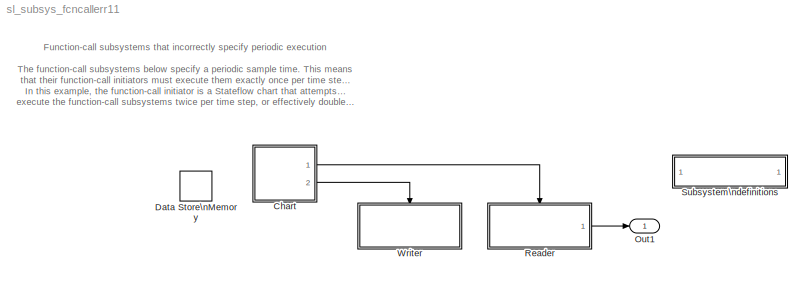
MODEL sl_subsys_fcncallerr11
KIND model
BLOCK [SubSystem]  Subsystem\ndefinitions
  MaskDisplay = disp('Subsystem\\ndefinitions')\n\n
  MaskIconFrame = on
  MaskIconOpaque = on
  MaskIconRotate = none
  MaskIconUnits = autoscale
  MinAlgLoopOccurrences = off
  OpenFcn = helpview([matlabroot,'/toolbox/simulink/simdemos/sl_subsys_definitions.html']);
  Ports = []
  PropExecContextAcrossSSBoundary = on
  RTWSystemCode = Auto
  TreatAsAtomicUnit = off
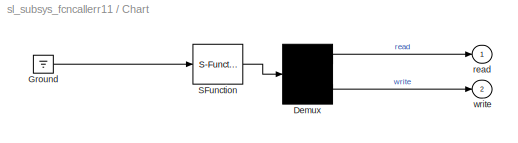
BLOCK [SubSystem] Chart
  MaskDescription = Stateflow diagram
  MaskDisplay = plot(sf('Private','sfblk','xIcon'),sf('Private','sfblk','yIcon'));text(0.5,0,sf('Private', 'sfblk', 'tIcon'),'HorizontalAl','Center','VerticalAl','Bottom');
  MaskIconFrame = off
  MaskIconOpaque = off
  MaskIconRotate = none
  MaskIconUnits = autoscale
  MaskSelfModifiable = on
  MaskType = Stateflow
  MinAlgLoopOccurrences = off
  Ports = [0, 2]
  PropExecContextAcrossSSBoundary = on
  RTWSystemCode = Auto
  TreatAsAtomicUnit = off
BLOCK [Demux] Chart/ Demux 
  Outputs = 2
  Ports = [1, 2]
BLOCK [Ground] Chart/ Ground 
BLOCK [S-Function] Chart/ SFunction 
  FunctionName = sf_sfun
  PortCounts = [1 1]
  Ports = [1, 1]
  Tag = Stateflow S-Function sl_subsys_fcncallerr11 1
BLOCK [Outport] Chart/read
  BusOutputAsStruct = off
  IconDisplay = Port number
BLOCK [Outport] Chart/write
  BusOutputAsStruct = off
  IconDisplay = Port number
  Port = 2
BLOCK [DataStoreMemory] Data Store\nMemory
  DataStoreName = A
  DialogController = Simulink.DDGSource
  InitialValue = 0
  RTWStateStorageClass = Auto
  ShowAdditionalParam = off
  VectorParams1D = on
BLOCK [Outport] Out1
  BusOutputAsStruct = off
  IconDisplay = Port number
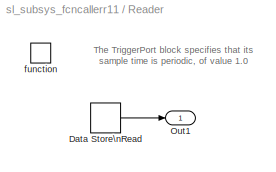
BLOCK [SubSystem] Reader
  MinAlgLoopOccurrences = off
  Ports = [0, 1, 0, 1]
  PropExecContextAcrossSSBoundary = on
  RTWSystemCode = Auto
  TreatAsAtomicUnit = on
BLOCK [DataStoreRead] Reader/Data Store\nRead
  DataStoreName = A
  DialogController = Simulink.DDGSource
  SampleTime = -1
BLOCK [Outport] Reader/Out1
  BusOutputAsStruct = off
  IconDisplay = Port number
BLOCK [TriggerPort] Reader/function
  Ports = []
  SampleTimeType = periodic
  StatesWhenEnabling = held
  TriggerType = function-call
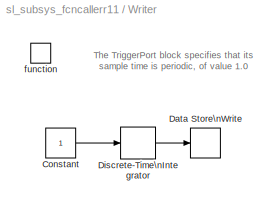
BLOCK [SubSystem] Writer
  MinAlgLoopOccurrences = off
  Ports = [0, 0, 0, 1]
  PropExecContextAcrossSSBoundary = on
  RTWSystemCode = Auto
  TreatAsAtomicUnit = on
BLOCK [Constant] Writer/Constant
BLOCK [DataStoreWrite] Writer/Data Store\nWrite
  DataStoreName = A
  DialogController = Simulink.DDGSource
  SampleTime = -1
BLOCK [DiscreteIntegrator] Writer/Discrete-Time\nIntegrator
  ExternalReset = none
  ICPrevOutput = DiscIntNeverNeededParam
  ICPrevScaledInput = DiscIntNeverNeededParam
  InitialConditionSource = internal
  IntegratorMethod = Integration: Backward Euler
  Ports = [1, 1]
  SampleTime = -1
BLOCK [TriggerPort] Writer/function
  Ports = []
  SampleTimeType = periodic
  StatesWhenEnabling = held
  TriggerType = function-call
ANNOTATION (root): Function-call subsystems that incorrectly specify periodic execution\n\nThe function-call subsystems below specify a periodic sample time. This means\nthat their function-call initiators must execute them exactly once per time step.\nIn this example, the function-call initiator is a Stateflow chart that attempts to\nexecute the function-call subsystems twice per time step, or effectively double th...<+75ch>
ANNOTATION Reader: The TriggerPort block specifies that its \nsample time is periodic, of value 1.0
ANNOTATION Writer: The TriggerPort block specifies that its \nsample time is periodic, of value 1.0
LINE Chart/ Demux :1 -> Chart/read:1
LINE Chart/ Demux :2 -> Chart/write:1
LINE Chart/ Ground :1 -> Chart/ SFunction :1
LINE Chart/ SFunction :1 -> Chart/ Demux :1
LINE Chart:1 -> Reader:trigger
LINE Chart:2 -> Writer:trigger
LINE Reader/Data Store\nRead:1 -> Reader/Out1:1
LINE Reader:1 -> Out1:1
LINE Writer/Constant:1 -> Writer/Discrete-Time\nIntegrator:1
LINE Writer/Discrete-Time\nIntegrator:1 -> Writer/Data Store\nWrite:1
CHART Chart states=0 transitions=1
